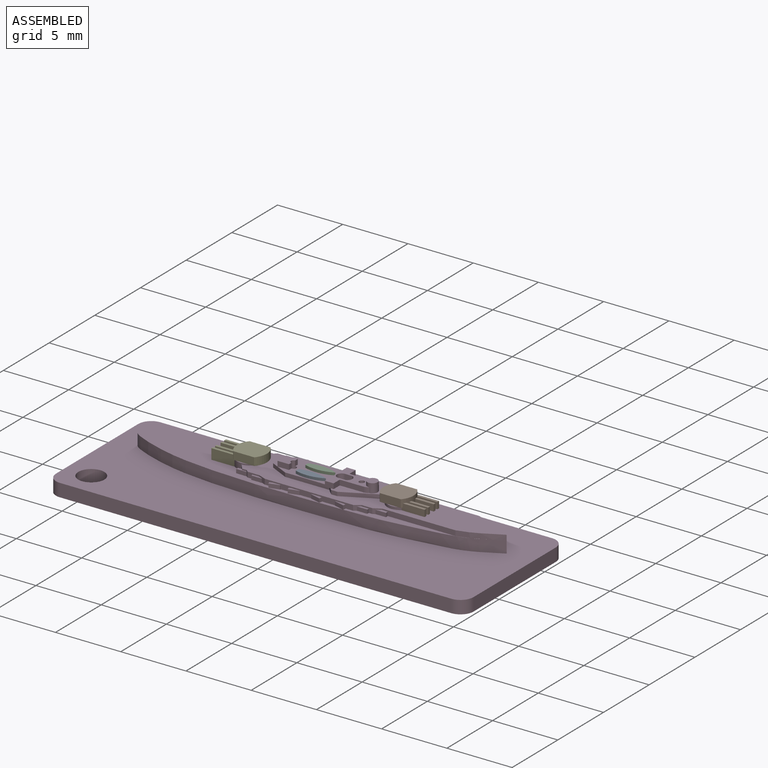
[diagram: assembled view]
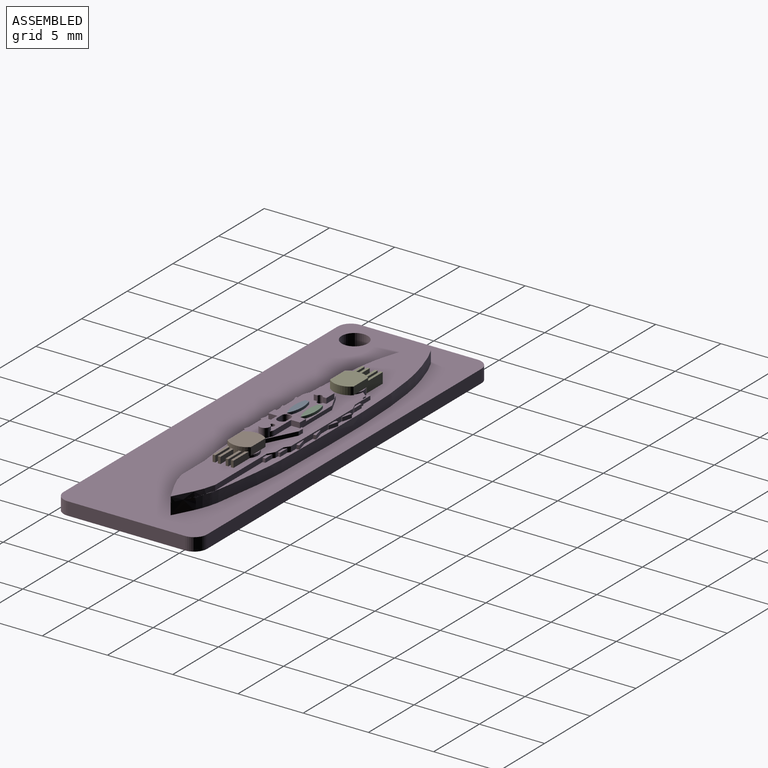
[diagram: assembled view, second angle]
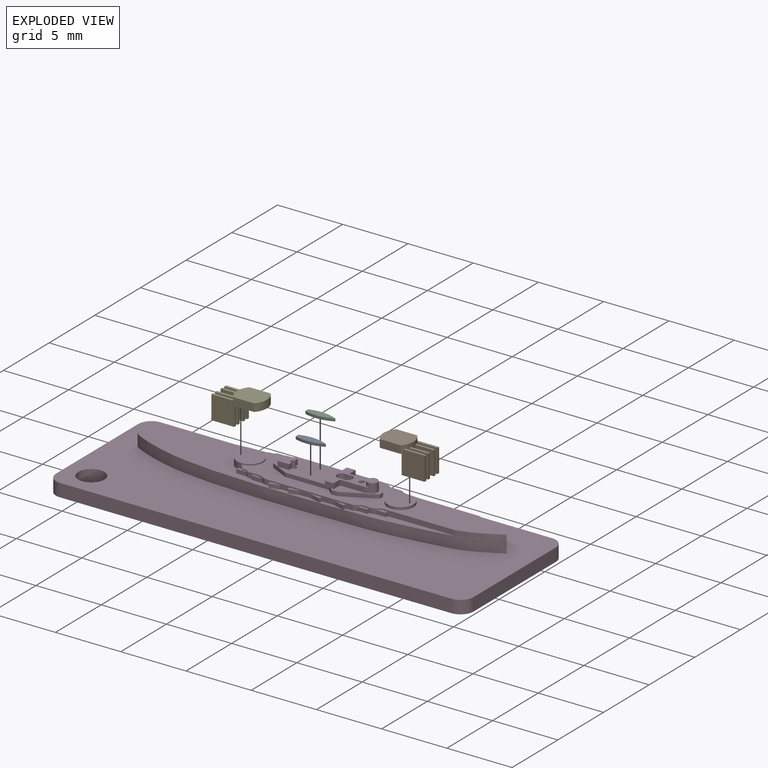
[diagram: exploded view]
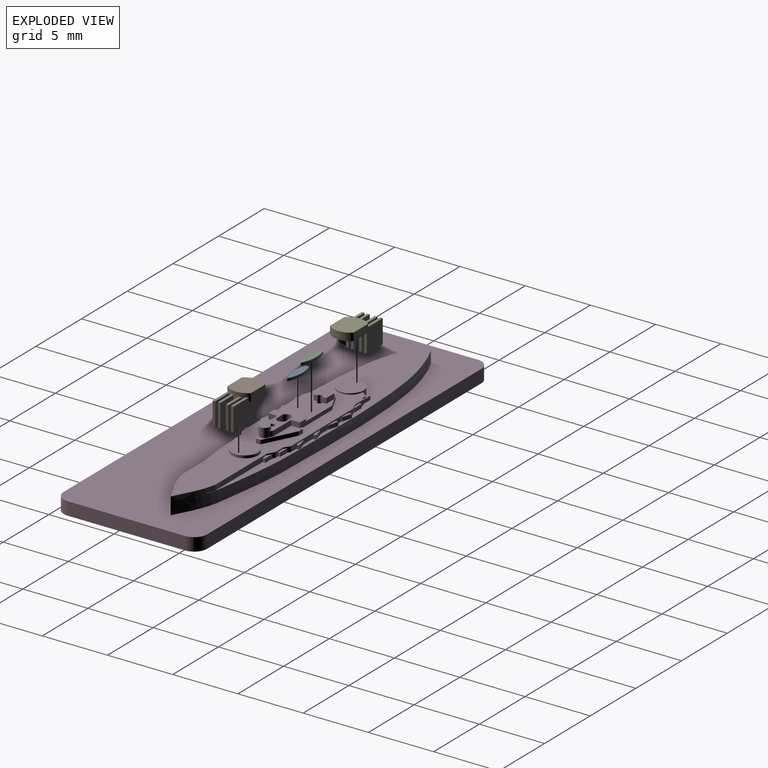
[diagram: exploded view, second angle]
ASSEMBLY  parts=5 mates=4
PART A: 5 faces, bbox 2.2x0.6x0.2 mm
  f0: plane 0.3x0.2mm, normal (-1,0,0), area 0.1mm2, adj f1,f2,f3,f4
  f1: cylinder r=2.89mm len=2.2mm, axis (0,0,-1), area 0.5mm2, adj f0,f2,f3,f4
  f2: cylinder r=2.89mm len=2.2mm, axis (0,0,-1), area 0.5mm2, adj f0,f1,f3,f4
  f3: plane 2.2x0.6mm, normal (0,0,1), area 1mm2, adj f0,f1,f2
  f4: plane 2.2x0.6mm, normal (0,0,-1), area 1mm2, adj f0,f1,f2
PART B: 30 faces, bbox 3.7x1.8x2.1 mm
  f0: cylinder r=1.32mm len=1.8mm, axis (0,0,-1), area 0.9mm2, adj f1,f2,f4,f5,f6,f8,f10,f13
  f1: plane 2.3x1.8mm, normal (0,0,-1), area 3.6mm2, adj f0,f2,f3,f4,f6,f7,f8,f12
  f2: plane 1.6x0.6mm, normal (0,-1,0), area 1mm2, adj f0,f1,f3,f5
  f3: cylinder r=1.34mm len=1.8mm, axis (0,0,-1), area 1.2mm2, adj f1,f2,f4,f5
  f4: plane 1.6x0.6mm, normal (0,1,0), area 1mm2, adj f0,f1,f3,f5
  f5: plane 2.3x1.8mm, normal (0,0,1), area 3.7mm2, adj f0,f2,f3,f4
  f6: plane 1.8x1.75mm, normal (0,-1,0), area 3.1mm2, adj f0,f1,f7,f9,f10,f11
  f7: plane 1.5x0.2mm, normal (1,0,0), area 0.3mm2, adj f1,f6,f8,f11
  f8: plane 1.8x1.75mm, normal (0,1,0), area 3.1mm2, adj f0,f1,f7,f9,f10,f11
  f9: plane 1.8x0.2mm, normal (-1,0,0), area 0.4mm2, adj f6,f8,f10,f11
  f10: plane 1.67x0.2mm, normal (0,0,1), area 0.3mm2, adj f0,f6,f8,f9
  f11: plane 1.75x0.2mm, normal (0,0,-1), area 0.4mm2, adj f6,f7,f8,f9
  f12: plane 1.5x0.2mm, normal (1,0,0), area 0.3mm2, adj f1,f13,f14,f17
  f13: plane 1.8x1.75mm, normal (0,1,0), area 3.1mm2, adj f0,f1,f12,f15,f16,f17
  f14: plane 1.8x1.75mm, normal (0,-1,0), area 3.1mm2, adj f0,f1,f12,f15,f16,f17
  f15: plane 1.8x0.2mm, normal (-1,0,0), area 0.4mm2, adj f13,f14,f16,f17
  f16: plane 1.67x0.2mm, normal (0,0,1), area 0.3mm2, adj f0,f13,f14,f15
  f17: plane 1.75x0.2mm, normal (0,0,-1), area 0.4mm2, adj f12,f13,f14,f15
  f18: plane 1.8x1.75mm, normal (0,1,0), area 3.1mm2, adj f0,f1,f20,f21,f22,f23
  f19: plane 1.8x1.75mm, normal (0,-1,0), area 3mm2, adj f0,f1,f20,f21,f22,f23
  f20: plane 1.5x0.2mm, normal (1,0,0), area 0.3mm2, adj f1,f18,f19,f23
  f21: plane 1.8x0.2mm, normal (-1,0,0), area 0.4mm2, adj f18,f19,f22,f23
  f22: plane 1.46x0.2mm, normal (0,0,1), area 0.3mm2, adj f0,f18,f19,f21
  f23: plane 1.75x0.2mm, normal (0,0,-1), area 0.3mm2, adj f18,f19,f20,f21
  f24: plane 1.8x1.75mm, normal (0,1,0), area 3mm2, adj f0,f1,f26,f27,f28,f29
  f25: plane 1.8x1.75mm, normal (0,-1,0), area 3.1mm2, adj f0,f1,f26,f27,f28,f29
  f26: plane 1.5x0.2mm, normal (1,0,0), area 0.3mm2, adj f1,f24,f25,f29
  f27: plane 1.8x0.2mm, normal (-1,0,0), area 0.4mm2, adj f24,f25,f28,f29
  f28: plane 1.46x0.2mm, normal (0,0,1), area 0.3mm2, adj f0,f24,f25,f27
  f29: plane 1.75x0.2mm, normal (0,0,-1), area 0.3mm2, adj f24,f25,f26,f27
PART C: same geometry as A
PART D: 161 faces, bbox 32x11x3.3 mm
  f0: plane 0.4x0.28mm, normal (1,0,0), area 0.1mm2, adj f135,f148,f149,f157
  f1: plane 0.4x0.28mm, normal (1,0,0), area 0.1mm2, adj f135,f146,f149,f157
  f2: plane 3.07x2.79mm, normal (0,0,1), area 2.5mm2, adj f3,f4,f127,f128,f129,f130,f131,f132
  f3: cylinder r=0.53mm len=0.4mm, axis (0,0,-1), area 0.1mm2, adj f2,f142,f144,f150
  f4: cylinder r=0.53mm len=0.4mm, axis (0,0,-1), area 0.1mm2, adj f2,f143,f144,f150
  f5: plane 6.78x0.4mm, normal (0,-1,0), area 1.9mm2, adj f6,f7,f12,f38,f44,f103,f106,f107
  f6: plane 17.45x4.51mm, normal (0,0,1), area 29.6mm2, adj f5,f8,f12,f13,f16,f17,f18,f31
  f7: plane 10.44x1.81mm, normal (0,0,1), area 3.2mm2, adj f5,f10,f11,f32,f38,f39,f40,f74
  f8: plane 6.78x0.4mm, normal (0,1,0), area 1.9mm2, adj f6,f9,f15,f33,f44,f81,f82,f83
  f9: plane 10.44x1.81mm, normal (0,0,1), area 3.2mm2, adj f8,f14,f15,f31,f41,f42,f43,f58
  f10: plane 0.54x0.4mm, normal (0.49,-0.87,0), area 0.1mm2, adj f7,f11,f39,f44,f78,f80
  f11: plane 0.84x0.4mm, normal (0,-1,0), area 0.2mm2, adj f7,f10,f38,f44,f76,f77
  f12: plane 0.59x0.4mm, normal (-0.38,-0.92,0), area 0.2mm2, adj f5,f6,f37,f44,f72,f73
  f13: plane 0.4x0.18mm, normal (-0.68,-0.73,0), area 0.1mm2, adj f6,f36,f37,f44,f67,f69
  f14: plane 0.54x0.4mm, normal (0.49,0.87,0), area 0.1mm2, adj f9,f42,f43,f44,f62,f63
  f15: plane 0.43x0.4mm, normal (0.57,0.82,0), area 0.1mm2, adj f8,f9,f43,f44,f59,f60
  f16: plane 0.91x0.4mm, normal (0,1,0), area 0.2mm2, adj f6,f33,f34,f44,f55,f56
  f17: plane 0.48x0.4mm, normal (-0.79,0.62,0), area 0.2mm2, adj f6,f35,f44,f47,f49,f51
  f18: plane 0.48x0.4mm, normal (-0.79,-0.62,0), area 0.2mm2, adj f6,f36,f44,f47,f68,f69
  f19: plane 0.27x0.25mm, normal (0,0,1), area 0mm2, adj f31,f32,f40,f41
  f20: plane 32x11mm, normal (0,0,1), area 250.3mm2, adj f21,f22,f23,f24,f25,f26,f27,f28
  f21: plane 9x1mm, normal (1,0,0), area 9mm2, adj f20,f22,f28,f29
  f22: cylinder r=1mm len=1mm, axis (0,0,1), area 1.6mm2, adj f20,f21,f23,f29
  f23: plane 30x1mm, normal (0,1,0), area 30mm2, adj f20,f22,f24,f29
  f24: cylinder r=1mm len=1mm, axis (0,0,1), area 1.6mm2, adj f20,f23,f25,f29
  f25: plane 9x1mm, normal (-1,0,0), area 9mm2, adj f20,f24,f26,f29
  f26: cylinder r=1mm len=1mm, axis (0,0,1), area 1.6mm2, adj f20,f25,f27,f29
  f27: plane 30x1mm, normal (0,-1,0), area 30mm2, adj f20,f26,f28,f29
  f28: cylinder r=1mm len=1mm, axis (0,0,1), area 1.6mm2, adj f20,f21,f27,f29
  f29: plane 32x11mm, normal (0,0,-1), area 348mm2, adj f21,f22,f23,f24,f25,f26,f27,f28
  f30: cylinder r=1mm len=2mm, axis (0,0,1), area 6.3mm2, adj f20,f29
  f31: extruded ~28.2x2.2mm, area 26.1mm2, adj f6,f9,f19,f20,f32,f41,f101
  f32: extruded ~28.2x2.2mm, area 26.1mm2, adj f6,f7,f19,f20,f31,f40,f102
  f33: plane 0.59x0.4mm, normal (-0.38,0.92,0), area 0.2mm2, adj f6,f8,f16,f44,f54,f56
  f34: plane 0.4x0.18mm, normal (-0.68,0.73,0), area 0.1mm2, adj f6,f16,f35,f44,f50,f51
  f35: plane 0.34x0.1mm, normal (0,1,0), area 0mm2, adj f17,f34,f44,f51
  f36: plane 0.34x0.1mm, normal (0,-1,0), area 0mm2, adj f13,f18,f44,f69
  f37: plane 0.91x0.4mm, normal (0,-1,0), area 0.2mm2, adj f6,f12,f13,f44,f70,f73
  f38: plane 0.43x0.4mm, normal (0.57,-0.82,0), area 0.1mm2, adj f5,f7,f11,f44,f74,f77
  f39: plane 5.61x0.4mm, normal (0,-1,0), area 2.1mm2, adj f7,f10,f40,f44,f79,f80
  f40: extruded ~3.03x1.3mm, area 1.3mm2, adj f7,f19,f32,f39,f41,f44
  f41: extruded ~3.03x1.3mm, area 1.3mm2, adj f9,f19,f31,f40,f42,f44
  f42: plane 5.61x0.4mm, normal (0,1,0), area 2.1mm2, adj f9,f14,f41,f44,f63,f64
  f43: plane 0.84x0.4mm, normal (0,1,0), area 0.2mm2, adj f9,f14,f15,f44,f58,f60
  f44: plane 19.63x3.8mm, normal (0,0,1), area 39.5mm2, adj f5,f8,f10,f11,f12,f13,f14,f15
  f45: cylinder r=1mm len=2mm, axis (0,0,-1), area 1.3mm2, adj f44,f46
  f46: plane 2x2mm, normal (0,0,1), area 3.1mm2, adj f45
  f47: cylinder r=1mm len=2mm, axis (0,0,-1), area 1.9mm2, adj f6,f17,f18,f44,f48
  f48: plane 2x2mm, normal (0,0,1), area 3.1mm2, adj f47
  f49: plane 0.3x0.3mm, normal (0,-1,0), area 0.1mm2, adj f6,f17,f51,f53
  f50: plane 0.3x0.02mm, normal (1,0,0), area 0mm2, adj f6,f34,f51,f52
  f51: plane 0.8x0.2mm, normal (0,0,1), area 0.1mm2, adj f17,f34,f35,f49,f50,f52,f53
  f52: plane 0.8x0.3mm, normal (0,1,0), area 0.2mm2, adj f6,f50,f51,f53
  f53: plane 0.3x0.2mm, normal (-1,0,0), area 0.1mm2, adj f6,f49,f51,f52
  f54: plane 0.3x0.03mm, normal (1,0,0), area 0mm2, adj f6,f33,f56,f57
  f55: plane 0.3x0.15mm, normal (-1,0,0), area 0mm2, adj f6,f16,f56,f57
  f56: plane 0.8x0.15mm, normal (0,0,1), area 0.1mm2, adj f16,f33,f54,f55,f57
  f57: plane 0.8x0.3mm, normal (0,1,0), area 0.2mm2, adj f6,f54,f55,f56
  f58: plane 0.3x0.17mm, normal (1,0,0), area 0.1mm2, adj f9,f43,f60,f61
  f59: plane 0.3x0.01mm, normal (-1,0,0), area 0mm2, adj f9,f15,f60,f61
  f60: plane 0.8x0.17mm, normal (0,0,1), area 0.1mm2, adj f15,f43,f58,f59,f61
  f61: plane 0.8x0.3mm, normal (0,1,0), area 0.2mm2, adj f9,f58,f59,f60
  f62: plane 0.8x0.3mm, normal (0,1,0), area 0.2mm2, adj f9,f14,f63,f64
  f63: plane 0.8x0.21mm, normal (0,0,1), area 0.1mm2, adj f14,f42,f62,f64
  f64: plane 0.3x0.21mm, normal (1,0,0), area 0.1mm2, adj f9,f42,f62,f63
  f65: plane 0.3x0.2mm, normal (-1,0,0), area 0.1mm2, adj f6,f66,f68,f69
  f66: plane 0.8x0.3mm, normal (0,-1,0), area 0.2mm2, adj f6,f65,f67,f69
  f67: plane 0.3x0.02mm, normal (1,0,0), area 0mm2, adj f6,f13,f66,f69
  f68: plane 0.3x0.3mm, normal (0,1,0), area 0.1mm2, adj f6,f18,f65,f69
  f69: plane 0.8x0.2mm, normal (0,0,1), area 0.1mm2, adj f13,f18,f36,f65,f66,f67,f68
  f70: plane 0.3x0.15mm, normal (-1,0,0), area 0mm2, adj f6,f37,f71,f73
  f71: plane 0.8x0.3mm, normal (0,-1,0), area 0.2mm2, adj f6,f70,f72,f73
  f72: plane 0.3x0.03mm, normal (1,0,0), area 0mm2, adj f6,f12,f71,f73
  f73: plane 0.8x0.15mm, normal (0,0,1), area 0.1mm2, adj f12,f37,f70,f71,f72
  f74: plane 0.3x0.01mm, normal (-1,0,0), area 0mm2, adj f7,f38,f75,f77
  f75: plane 0.8x0.3mm, normal (0,-1,0), area 0.2mm2, adj f7,f74,f76,f77
  f76: plane 0.3x0.17mm, normal (1,0,0), area 0.1mm2, adj f7,f11,f75,f77
  f77: plane 0.8x0.17mm, normal (0,0,1), area 0.1mm2, adj f11,f38,f74,f75,f76
  f78: plane 0.8x0.3mm, normal (0,-1,0), area 0.2mm2, adj f7,f10,f79,f80
  f79: plane 0.3x0.21mm, normal (1,0,0), area 0.1mm2, adj f7,f39,f78,f80
  f80: plane 0.8x0.21mm, normal (0,0,1), area 0.1mm2, adj f10,f39,f78,f79
  f81: plane 0.3x0.22mm, normal (-0.26,-0.97,0), area 0.1mm2, adj f6,f8,f83,f85
  f82: plane 0.3x0.04mm, normal (0.97,-0.26,0), area 0mm2, adj f6,f8,f83,f84
  f83: plane 0.82x0.25mm, normal (0,0,1), area 0.1mm2, adj f8,f81,f82,f84,f85
  f84: plane 0.77x0.3mm, normal (0.26,0.97,0), area 0.2mm2, adj f6,f82,f83,f85
  f85: plane 0.3x0.19mm, normal (-0.97,0.26,0), area 0.1mm2, adj f6,f81,f83,f84
  f86: plane 0.82x0.24mm, normal (0,0,1), area 0.1mm2, adj f8,f87,f88,f89,f90
  f87: plane 0.3x0.17mm, normal (-0.26,-0.97,0), area 0.1mm2, adj f6,f8,f86,f90
  f88: plane 0.3x0.03mm, normal (0.97,-0.26,0), area 0mm2, adj f6,f8,f86,f89
  f89: plane 0.77x0.3mm, normal (0.26,0.97,0), area 0.2mm2, adj f6,f86,f88,f90
  f90: plane 0.3x0.19mm, normal (-0.97,0.26,0), area 0.1mm2, adj f6,f86,f87,f89
  f91: plane 0.82x0.24mm, normal (0,0,1), area 0.1mm2, adj f8,f92,f93,f94,f95
  f92: plane 0.3x0.03mm, normal (-0.97,-0.26,0), area 0mm2, adj f6,f8,f91,f94
  f93: plane 0.3x0.17mm, normal (0.26,-0.97,0), area 0.1mm2, adj f6,f8,f91,f95
  f94: plane 0.77x0.3mm, normal (-0.26,0.97,0), area 0.2mm2, adj f6,f91,f92,f95
  f95: plane 0.3x0.19mm, normal (0.97,0.26,0), area 0.1mm2, adj f6,f91,f93,f94
  f96: plane 0.82x0.24mm, normal (0,0,1), area 0.1mm2, adj f8,f97,f98,f99,f100
  f97: plane 0.3x0.03mm, normal (-0.97,-0.26,0), area 0mm2, adj f6,f8,f96,f99
  f98: plane 0.3x0.17mm, normal (0.26,-0.97,0), area 0.1mm2, adj f8,f9,f96,f100
  f99: plane 0.77x0.3mm, normal (-0.26,0.97,0), area 0.2mm2, adj f6,f96,f97,f100,f101
  f100: plane 0.3x0.19mm, normal (0.97,0.26,0), area 0.1mm2, adj f9,f96,f98,f99,f101
  f101: plane 0.01x0mm, normal (0,0,-1), area 0mm2, adj f31,f99,f100
  f102: plane 0.01x0mm, normal (0,0,-1), area 0mm2, adj f32,f104,f105
  f103: plane 0.3x0.03mm, normal (-0.97,0.26,0), area 0mm2, adj f5,f6,f104,f107
  f104: plane 0.77x0.3mm, normal (-0.26,-0.97,0), area 0.2mm2, adj f6,f102,f103,f105,f107
  f105: plane 0.3x0.19mm, normal (0.97,-0.26,0), area 0.1mm2, adj f7,f102,f104,f106,f107
  f106: plane 0.3x0.17mm, normal (0.26,0.97,0), area 0.1mm2, adj f5,f7,f105,f107
  f107: plane 0.82x0.24mm, normal (0,0,1), area 0.1mm2, adj f5,f103,f104,f105,f106
  f108: plane 0.3x0.17mm, normal (-0.26,0.97,0), area 0.1mm2, adj f5,f6,f109,f112
  f109: plane 0.3x0.19mm, normal (-0.97,-0.26,0), area 0.1mm2, adj f6,f108,f110,f112
  f110: plane 0.77x0.3mm, normal (0.26,-0.97,0), area 0.2mm2, adj f6,f109,f111,f112
  f111: plane 0.3x0.03mm, normal (0.97,0.26,0), area 0mm2, adj f5,f6,f110,f112
  f112: plane 0.82x0.24mm, normal (0,0,1), area 0.1mm2, adj f5,f108,f109,f110,f111
  f113: plane 0.3x0.17mm, normal (0.26,0.97,0), area 0.1mm2, adj f5,f6,f116,f117
  f114: plane 0.3x0.03mm, normal (-0.97,0.26,0), area 0mm2, adj f5,f6,f115,f117
  f115: plane 0.77x0.3mm, normal (-0.26,-0.97,0), area 0.2mm2, adj f6,f114,f116,f117
  f116: plane 0.3x0.19mm, normal (0.97,-0.26,0), area 0.1mm2, adj f6,f113,f115,f117
  f117: plane 0.82x0.24mm, normal (0,0,1), area 0.1mm2, adj f5,f113,f114,f115,f116
  f118: plane 0.3x0.19mm, normal (-0.97,-0.26,0), area 0.1mm2, adj f6,f119,f121,f122
  f119: plane 0.77x0.3mm, normal (0.26,-0.97,0), area 0.2mm2, adj f6,f118,f120,f122
  f120: plane 0.3x0.04mm, normal (0.97,0.26,0), area 0mm2, adj f5,f6,f119,f122
  f121: plane 0.3x0.22mm, normal (-0.26,0.97,0), area 0.1mm2, adj f5,f6,f118,f122
  f122: plane 0.82x0.25mm, normal (0,0,1), area 0.1mm2, adj f5,f118,f119,f120,f121
  f123: plane 1.4x0.69mm, normal (-0.44,0.9,0), area 0.5mm2, adj f44,f124,f134,f135
  f124: plane 0.47x0.3mm, normal (-1,0,0), area 0.1mm2, adj f44,f123,f125,f135
  f125: plane 1.4x0.69mm, normal (-0.44,-0.9,0), area 0.5mm2, adj f44,f124,f126,f135
  f126: plane 3.38x0.3mm, normal (0,-1,0), area 1mm2, adj f44,f125,f127,f135,f136
  f127: plane 0.47x0.47mm, normal (-0.71,-0.71,0), area 0.2mm2, adj f2,f44,f126,f128,f136
  f128: plane 0.47x0.3mm, normal (0,-1,0), area 0.1mm2, adj f2,f44,f127,f129
  f129: plane 2.42x1.21mm, normal (0.45,-0.89,0), area 0.8mm2, adj f2,f44,f128,f130
  f130: plane 0.36x0.3mm, normal (1,0,0), area 0.1mm2, adj f2,f44,f129,f131
  f131: plane 2.42x1.21mm, normal (0.45,0.89,0), area 0.8mm2, adj f2,f44,f130,f132
  f132: plane 0.47x0.3mm, normal (0,1,0), area 0.1mm2, adj f2,f44,f131,f133
  f133: plane 0.47x0.47mm, normal (-0.71,0.71,0), area 0.2mm2, adj f2,f44,f132,f134,f145
  f134: plane 3.38x0.3mm, normal (0,1,0), area 1mm2, adj f44,f123,f133,f135,f145
  f135: plane 4.64x1.85mm, normal (0,0,1), area 6.6mm2, adj f0,f1,f123,f124,f125,f126,f134,f139
  f136: plane 0.43x0.28mm, normal (0,0,-1), area 0.1mm2, adj f126,f127,f139,f140
  f137: plane 0.68x0.4mm, normal (1,0,0), area 0.3mm2, adj f2,f138,f143,f144
  f138: plane 0.67x0.4mm, normal (0,1,0), area 0.3mm2, adj f2,f137,f139,f144,f145
  f139: plane 2.41x0.4mm, normal (-1,0,0), area 1mm2, adj f135,f136,f138,f140,f144,f145
  f140: plane 0.67x0.4mm, normal (0,-1,0), area 0.3mm2, adj f2,f136,f139,f141,f144
  f141: plane 0.68x0.4mm, normal (1,0,0), area 0.3mm2, adj f2,f140,f142,f144
  f142: plane 1.84x0.4mm, normal (0,-1,0), area 0.7mm2, adj f2,f3,f141,f144
  f143: plane 1.84x0.4mm, normal (0,1,0), area 0.7mm2, adj f2,f4,f137,f144
  f144: plane 2.83x2.41mm, normal (0,0,1), area 2.7mm2, adj f3,f4,f137,f138,f139,f140,f141,f142
  f145: plane 0.43x0.28mm, normal (0,0,-1), area 0.1mm2, adj f133,f134,f138,f139
  f146: plane 0.88x0.4mm, normal (0,1,0), area 0.4mm2, adj f1,f135,f147,f149
  f147: cylinder r=0.85mm len=0.96mm, axis (0,0,-1), area 0.4mm2, adj f135,f146,f148,f149
  f148: plane 0.88x0.4mm, normal (0,-1,0), area 0.4mm2, adj f0,f135,f147,f149
  f149: plane 1.03x0.96mm, normal (0,0,1), area 0.9mm2, adj f0,f1,f146,f147,f148,f157
  f150: cylinder r=0.4mm len=0.8mm, axis (0,0,-1), area 1.2mm2, adj f2,f3,f4,f144,f151
  f151: plane 0.8x0.8mm, normal (0,0,1), area 0.5mm2, adj f150
  f152: plane 1.8x0.56mm, normal (0,1,0), area 1mm2, adj f144,f153,f155,f156
  f153: cylinder r=0.37mm len=1.8mm, axis (0,0,-1), area 1.7mm2, adj f144,f152,f154,f156
  f154: plane 1.8x0.56mm, normal (0,-1,0), area 1mm2, adj f144,f153,f155,f156
  f155: cylinder r=0.36mm len=1.8mm, axis (0,0,-1), area 2mm2, adj f144,f152,f154,f156
  f156: plane 1.19x0.72mm, normal (0,0,1), area 0.7mm2, adj f152,f153,f154,f155
  f157: cylinder r=0.2mm len=2mm, axis (0,0,-1), area 2.2mm2, adj f0,f1,f135,f149,f158
  f158: plane 0.4x0.4mm, normal (0,0,1), area 0.1mm2, adj f157
  f159: cylinder r=0.2mm len=2mm, axis (0,0,-1), area 2.5mm2, adj f144,f160
  f160: plane 0.4x0.4mm, normal (0,0,1), area 0.1mm2, adj f159
PART E: same geometry as B
PLACE A rot(axis=(0,0,1),0deg) t=(5.76,-16.53,-3.08)mm
PLACE B rot(axis=(0,0,1),180deg) t=(-11.69,3.76,-1.48)mm
PLACE C rot(axis=(0,0,1),0deg) t=(5.76,-15.48,-3.08)mm
PLACE D t=(-0.64,-6.81,-2.98)mm
PLACE E t=(10.58,-17.39,-1.58)mm
MATE fastened C.f4 <-> D.f135  axis (0,0,-1) through (-1.36,-6.29,-1.38)mm
MATE fastened B.f1 <-> D.f45  axis (0,0,-1) through (5.21,-6.81,-1.48)mm
MATE fastened A.f4 <-> D.f135  axis (0,0,-1) through (-1.36,-7.34,-1.38)mm
MATE fastened E.f1 <-> D.f47  axis (0,0,-1) through (-6.33,-6.81,-1.58)mm
